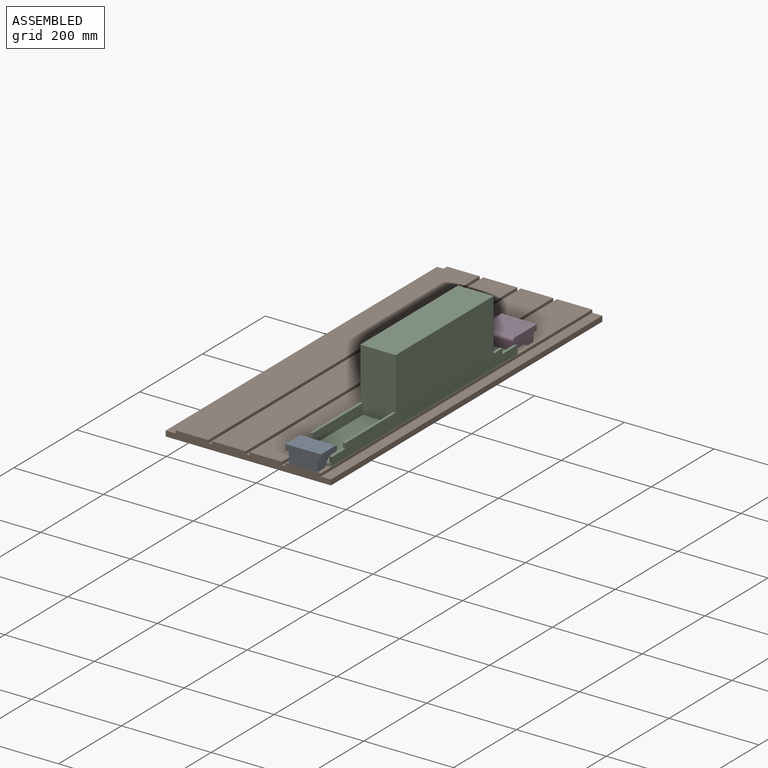
[diagram: assembled view]
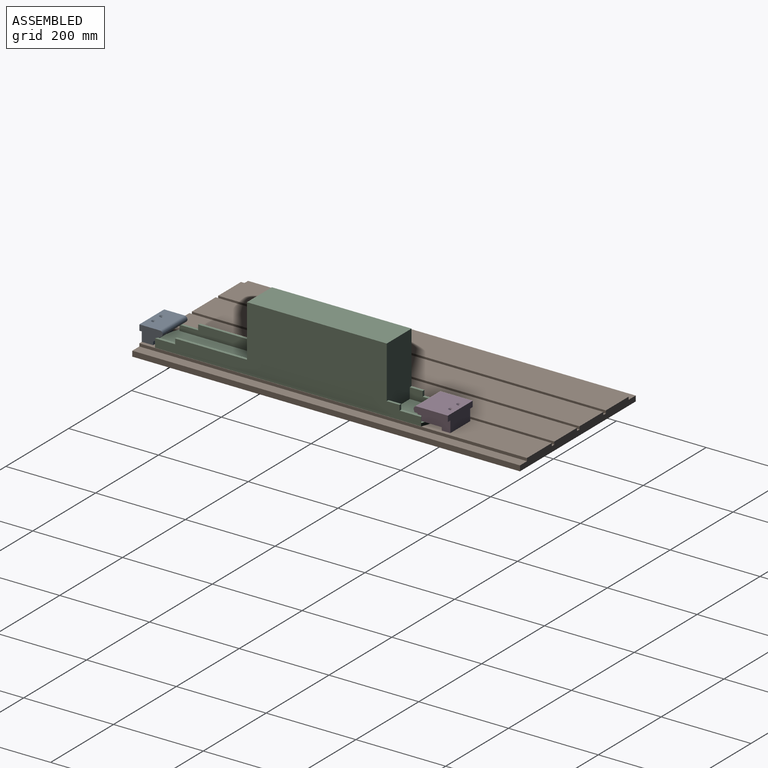
[diagram: assembled view, second angle]
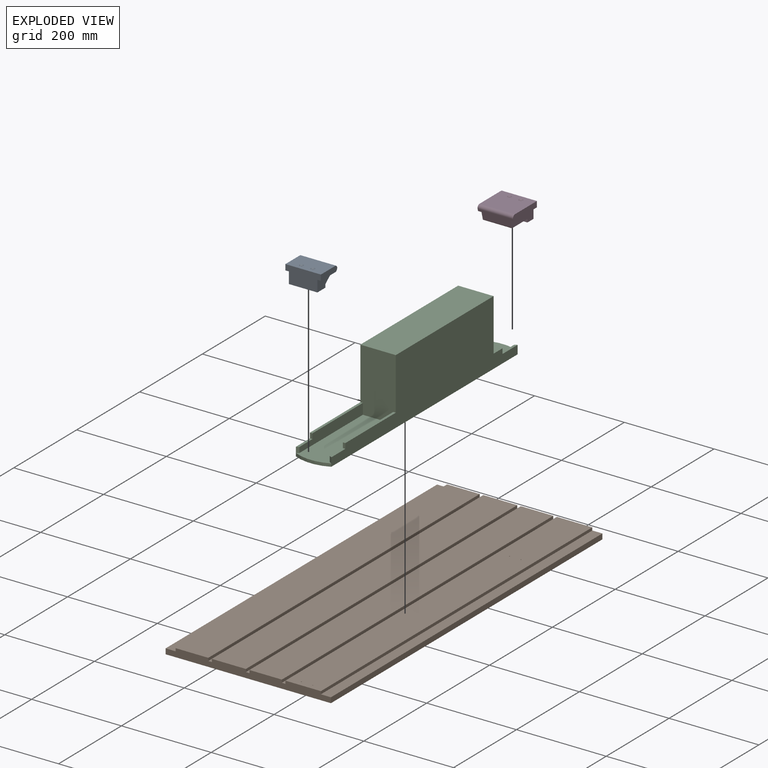
[diagram: exploded view]
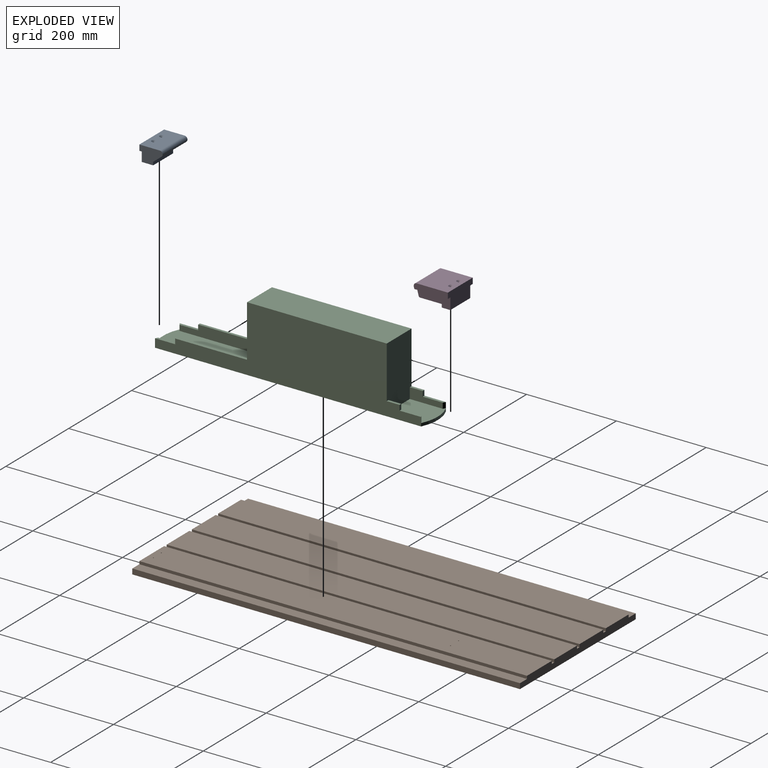
[diagram: exploded view, second angle]
ASSEMBLY  parts=4 mates=6
PART A: 16 faces, bbox 79x52x38.1 mm
  f0: plane 78.98x38.1mm, normal (0,-1,0), area 2615.9mm2, adj f1,f5,f6,f7,f8,f9,f10,f11
  f1: plane 63.5x25.4mm, normal (0,0,-1), area 1581.2mm2, adj f0,f2,f6,f7,f12,f14
  f2: plane 63.5x7.14mm, normal (0,1,0), area 453.6mm2, adj f1,f3,f6,f7
  f3: plane 78.98x24.22mm, normal (0,0.63,-0.78), area 2016.4mm2, adj f2,f4,f6,f7,f8,f9,f10,f11
  f4: cylinder r=6.35mm len=78.98mm, axis (-1,0,0), area 1233.4mm2, adj f3,f5,f8,f11
  f5: plane 78.98x45.61mm, normal (0,0,1), area 3472mm2, adj f0,f4,f8,f11,f13,f15
  f6: plane 47.87x25.4mm, normal (1,0,0), area 850.3mm2, adj f0,f1,f2,f3,f10
  f7: plane 47.87x25.4mm, normal (-1,0,0), area 850.3mm2, adj f0,f1,f2,f3,f9
  f8: plane 51.96x12.7mm, normal (-1,0,0), area 643.2mm2, adj f0,f3,f4,f5,f9
  f9: plane 47.87x7.74mm, normal (0,0,-1), area 370.5mm2, adj f0,f3,f7,f8
  f10: plane 47.87x7.74mm, normal (0,0,-1), area 370.5mm2, adj f0,f3,f6,f11
  f11: plane 51.96x12.7mm, normal (1,0,0), area 643.2mm2, adj f0,f3,f4,f5,f10
  f12: cylinder r=2.25mm len=35.44mm, axis (0,0,1), area 500.6mm2, adj f1,f13
  f13: cone r=2.25mm half-angle=41deg, axis (0,0,1), area 75.3mm2, adj f5,f12
  f14: cylinder r=2.25mm len=35.44mm, axis (0,0,1), area 500.6mm2, adj f1,f15
  f15: cone r=2.25mm half-angle=41deg, axis (0,0,1), area 75.3mm2, adj f5,f14
PART B: 26 faces, bbox 368.3x863.6x18.3 mm
  f0: plane 863.6x11.91mm, normal (-1,0,0), area 10282.2mm2, adj f1,f19,f20,f21
  f1: plane 863.6x368.3mm, normal (0,0,-1), area 318051.5mm2, adj f0,f2,f20,f21,f22,f23,f24,f25
  f2: plane 863.6x11.91mm, normal (1,0,0), area 10282.2mm2, adj f1,f3,f20,f21
  f3: plane 863.6x22.42mm, normal (0,0,1), area 19364.9mm2, adj f2,f4,f20,f21
  f4: plane 863.6x6.35mm, normal (1,0,0), area 5483.9mm2, adj f3,f5,f20,f21
  f5: plane 863.6x78.98mm, normal (0,0,1), area 68193.1mm2, adj f4,f6,f20,f21,f22,f23,f24,f25
  f6: plane 863.6x6.35mm, normal (-1,0,0), area 5483.9mm2, adj f5,f7,f20,f21
  f7: plane 863.6x7.94mm, normal (0,0,1), area 6854.8mm2, adj f6,f8,f20,f21
  f8: plane 863.6x6.35mm, normal (1,0,0), area 5483.9mm2, adj f7,f9,f20,f21
  f9: plane 863.6x72.23mm, normal (0,0,1), area 62378.9mm2, adj f8,f10,f20,f21
  f10: plane 863.6x6.35mm, normal (-1,0,0), area 5483.9mm2, adj f9,f11,f20,f21
  f11: plane 863.6x7.94mm, normal (0,0,1), area 6854.8mm2, adj f10,f12,f20,f21
  f12: plane 863.6x6.35mm, normal (1,0,0), area 5483.9mm2, adj f11,f13,f20,f21
  f13: plane 863.6x75.8mm, normal (0,0,1), area 65463.6mm2, adj f12,f14,f20,f21
  f14: plane 863.6x6.35mm, normal (-1,0,0), area 5483.9mm2, adj f13,f15,f20,f21
  f15: plane 863.6x7.94mm, normal (0,0,1), area 6854.8mm2, adj f14,f16,f20,f21
  f16: plane 863.6x6.35mm, normal (1,0,0), area 5483.9mm2, adj f15,f17,f20,f21
  f17: plane 863.6x72.63mm, normal (0,0,1), area 62721.6mm2, adj f16,f18,f20,f21
  f18: plane 863.6x6.35mm, normal (-1,0,0), area 5483.9mm2, adj f17,f19,f20,f21
  f19: plane 863.6x22.42mm, normal (0,0,1), area 19364.9mm2, adj f0,f18,f20,f21
  f20: plane 368.3x18.26mm, normal (0,-1,0), area 6287.8mm2, adj f0,f1,f2,f3,f4,f5,f6,f7
  f21: plane 368.3x18.26mm, normal (0,1,0), area 6287.8mm2, adj f0,f1,f2,f3,f4,f5,f6,f7
  f22: cylinder r=0.99mm len=18.26mm, axis (0,0,1), area 113.8mm2, adj f1,f5
  f23: cylinder r=0.99mm len=18.26mm, axis (0,0,1), area 113.8mm2, adj f1,f5
  f24: cylinder r=0.99mm len=18.26mm, axis (0,0,1), area 113.8mm2, adj f1,f5
  f25: cylinder r=0.99mm len=18.26mm, axis (0,0,1), area 113.8mm2, adj f1,f5
PART C: 30 faces, bbox 79x611.2x146.4 mm
  f0: plane 214.31x78.98mm, normal (0,0,1), area 14428.3mm2, adj f2,f6,f10,f17,f24,f28
  f1: plane 85.73x78.98mm, normal (0,0,1), area 5701.6mm2, adj f4,f8,f14,f19,f22,f26
  f2: plane 139.7x78.98mm, normal (0,-1,0), area 10768.6mm2, adj f0,f3,f5,f9,f10,f12,f17,f18
  f3: plane 592.93x146.45mm, normal (1,0,0), area 53109.1mm2, adj f2,f4,f6,f7,f8,f9,f11,f12
  f4: cylinder r=89.98mm len=78.98mm, axis (0,0,1), area 551.6mm2, adj f1,f3,f5,f7
  f5: plane 592.93x146.45mm, normal (-1,0,0), area 53109.1mm2, adj f2,f4,f6,f7,f8,f9,f16,f18
  f6: cylinder r=89.98mm len=78.98mm, axis (0,0,1), area 551.6mm2, adj f0,f3,f5,f7
  f7: plane 611.19x78.98mm, normal (0,0,-1), area 47800mm2, adj f3,f4,f5,f6
  f8: plane 139.7x78.98mm, normal (0,1,0), area 10768.6mm2, adj f1,f3,f5,f9,f14,f15,f19,f21
  f9: plane 311.15x78.98mm, normal (0,0,1), area 24574mm2, adj f2,f3,f5,f8
  f10: plane 202.01x23.81mm, normal (-1,0,0), area 4330.7mm2, adj f0,f2,f11,f12,f24,f25
  f11: plane 11.51x5.56mm, normal (0,-1,0), area 63.9mm2, adj f3,f10,f12,f25
  f12: plane 160.34x5.56mm, normal (0,0,1), area 890.9mm2, adj f2,f3,f10,f11
  f13: plane 11.51x5.56mm, normal (0,1,0), area 63.9mm2, adj f3,f14,f15,f23
  f14: plane 73.42x23.81mm, normal (-1,0,0), area 1232.2mm2, adj f1,f8,f13,f15,f22,f23
  f15: plane 28.58x5.56mm, normal (0,0,1), area 158.8mm2, adj f3,f8,f13,f14
  f16: plane 11.51x5.56mm, normal (0,-1,0), area 63.9mm2, adj f5,f17,f18,f29
  f17: plane 202.01x23.81mm, normal (1,0,0), area 4330.7mm2, adj f0,f2,f16,f18,f28,f29
  f18: plane 160.34x5.56mm, normal (0,0,1), area 890.9mm2, adj f2,f5,f16,f17
  f19: plane 73.42x23.81mm, normal (1,0,0), area 1232.2mm2, adj f1,f8,f20,f21,f26,f27
  f20: plane 11.51x5.56mm, normal (0,1,0), area 63.9mm2, adj f5,f19,f21,f27
  f21: plane 28.58x5.56mm, normal (0,0,1), area 158.8mm2, adj f5,f8,f19,f20
  f22: plane 12.3x5.56mm, normal (-0.5,0.87,0), area 78.7mm2, adj f1,f3,f14,f23
  f23: plane 48.02x5.56mm, normal (0,0,1), area 258mm2, adj f3,f13,f14,f22
  f24: plane 12.3x5.56mm, normal (-0.5,-0.87,0), area 78.7mm2, adj f0,f3,f10,f25
  f25: plane 44.85x5.56mm, normal (0,0,1), area 240.4mm2, adj f3,f10,f11,f24
  f26: plane 12.3x5.56mm, normal (0.5,0.87,0), area 78.7mm2, adj f1,f5,f19,f27
  f27: plane 48.02x5.56mm, normal (0,0,1), area 258mm2, adj f5,f19,f20,f26
  f28: plane 12.3x5.56mm, normal (0.5,-0.87,0), area 78.7mm2, adj f0,f5,f17,f29
  f29: plane 44.85x5.56mm, normal (0,0,1), area 240.4mm2, adj f5,f16,f17,f28
PART D: 18 faces, bbox 79x76.2x38.1 mm
  f0: plane 78.98x38.1mm, normal (0,-1,0), area 2615.9mm2, adj f1,f7,f8,f9,f10,f11,f12,f13
  f1: plane 63.5x19.05mm, normal (0,0,-1), area 1177.9mm2, adj f0,f2,f8,f9,f14,f16
  f2: plane 63.5x7.14mm, normal (0,1,0), area 453.6mm2, adj f1,f3,f8,f9
  f3: plane 63.5x48.36mm, normal (0,0,-1), area 3071mm2, adj f2,f4,f8,f9
  f4: cylinder r=3.17mm len=63.5mm, axis (-1,0,0), area 264.1mm2, adj f3,f5,f8,f9
  f5: plane 78.98x20.61mm, normal (0,0.97,-0.26), area 1430.2mm2, adj f4,f6,f8,f9,f10,f11,f12,f13
  f6: cylinder r=6.35mm len=78.98mm, axis (-1,0,0), area 918.7mm2, adj f5,f7,f10,f13
  f7: plane 78.98x69.85mm, normal (0,0,1), area 5386mm2, adj f0,f6,f10,f13,f15,f17
  f8: plane 74.73x25.4mm, normal (1,0,0), area 1454.7mm2, adj f0,f1,f2,f3,f4,f5,f12
  f9: plane 74.73x25.4mm, normal (-1,0,0), area 1454.7mm2, adj f0,f1,f2,f3,f4,f5,f11
  f10: plane 76.2x12.7mm, normal (-1,0,0), area 955mm2, adj f0,f5,f6,f7,f11
  f11: plane 74.73x7.74mm, normal (0,0,-1), area 578.3mm2, adj f0,f5,f9,f10
  f12: plane 74.73x7.74mm, normal (0,0,-1), area 578.3mm2, adj f0,f5,f8,f13
  f13: plane 76.2x12.7mm, normal (1,0,0), area 955mm2, adj f0,f5,f6,f7,f12
  f14: cylinder r=2.25mm len=35.44mm, axis (0,0,1), area 500.6mm2, adj f1,f15
  f15: cone r=2.25mm half-angle=41deg, axis (0,0,1), area 75.3mm2, adj f7,f14
  f16: cylinder r=2.25mm len=35.44mm, axis (0,0,1), area 500.6mm2, adj f1,f17
  f17: cone r=2.25mm half-angle=41deg, axis (0,0,1), area 75.3mm2, adj f7,f16
PLACE A t=(12.89,-325.74,20.07)mm
PLACE B t=(-109.35,106.06,1.81)mm
PLACE C t=(12.11,4.96,26.81)mm
PLACE D rot(axis=(0,0,1),180deg) t=(12.89,361.65,20.07)mm
MATE revolute D.f14 <-> B.f25  axis (0,0,-1) through (25.59,348.95,20.07)mm
MATE fastened A.f14 <-> B.f22  axis (0,0,-1) through (25.59,-313.04,20.07)mm
MATE planar C.f7 <-> B.f5  axis (0,0,-1) through (12.11,4.96,20.07)mm
MATE fastened D.f16 <-> B.f24  axis (0,0,-1) through (0.19,348.95,20.07)mm
MATE fastened A.f12 <-> B.f23  axis (0,0,-1) through (0.19,-313.04,20.07)mm
MATE parallel C.f3 <-> B.f4  axis (1,0,0) through (51.6,48.44,84.87)mm
